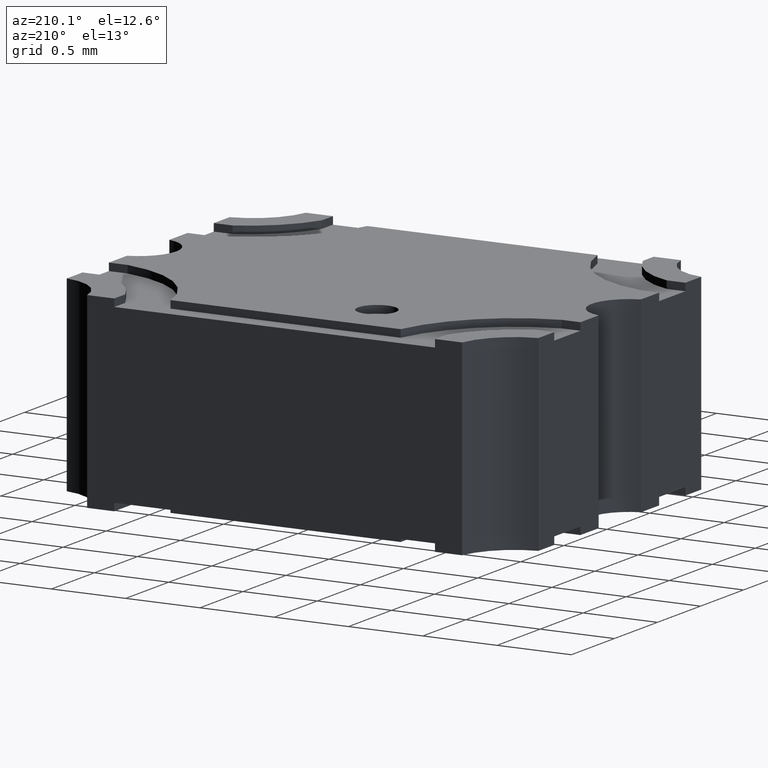
[diagram: clean part render]
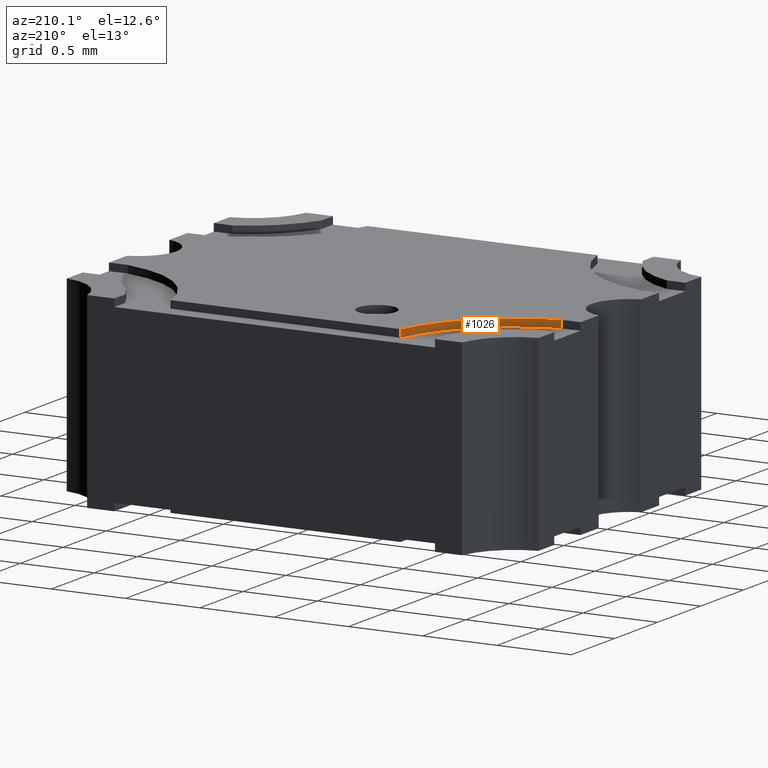
[diagram: same view with one face highlighted and labeled with its STEP entity id]
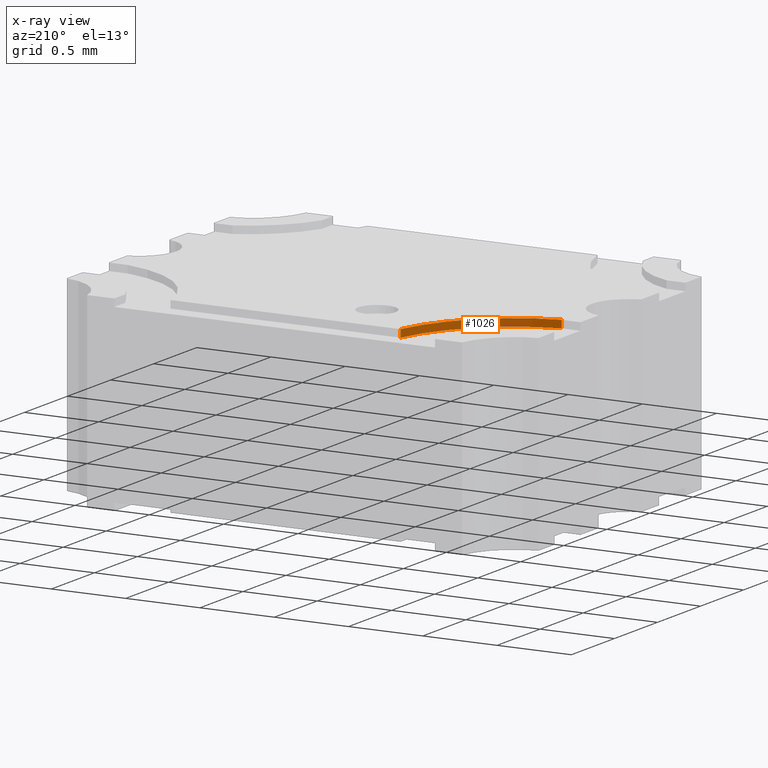
[diagram: x-ray of the same camera — body ghosted, the highlighted face saturated]
A machine part, auxiliary view. The second image highlights one B-rep face of the part: STEP entity #1026.
The next image is the same camera in x-ray: the body ghosted, the highlighted face saturated — about 0% of this face is hidden behind the body in this view.
In plain terms, the highlighted cylindrical surface (partial cylindrical patch) has radius 0.8901 mm, axis along (-0, -0, 1).
Its self-contained STEP definition (entity closure, byte-faithful):
#55 = CARTESIAN_POINT ( 'NONE',  ( -0.03050000001208063097, 0.04499419439808522575, 0.04999999999999999584 ) ) ;
#67 = FACE_OUTER_BOUND ( 'NONE', #318, .T. ) ;
#93 = DIRECTION ( 'NONE',  ( -0.000000000000000000, -0.000000000000000000, 1.000000000000000000 ) ) ;
#106 = AXIS2_PLACEMENT_3D ( 'NONE', #194, #427, #1314 ) ;
#194 = CARTESIAN_POINT ( 'NONE',  ( -0.06477874089993751472, 0.05227293529661255350, 0.04800000000000000100 ) ) ;
#278 = VERTEX_POINT ( 'NONE', #970 ) ;
#287 = DIRECTION ( 'NONE',  ( 1.000000000000000000, 0.000000000000000000, 0.000000000000000000 ) ) ;
#318 = EDGE_LOOP ( 'NONE', ( #1131, #2102, #763, #861 ) ) ;
#427 = DIRECTION ( 'NONE',  ( 0.000000000000000000, 0.000000000000000000, 1.000000000000000000 ) ) ;
#457 = LINE ( 'NONE', #1785, #919 ) ;
#662 = LINE ( 'NONE', #1404, #2130 ) ;
#664 = DIRECTION ( 'NONE',  ( 1.000000000000000000, 0.000000000000000000, 0.000000000000000000 ) ) ;
#708 = VERTEX_POINT ( 'NONE', #1343 ) ;
#759 = CARTESIAN_POINT ( 'NONE',  ( -0.05750000006123703877, 0.01799419439605206075, 0.04999999999999999584 ) ) ;
#763 = ORIENTED_EDGE ( 'NONE', *, *, #1377, .F. ) ;
#861 = ORIENTED_EDGE ( 'NONE', *, *, #1511, .T. ) ;
#898 = VERTEX_POINT ( 'NONE', #55 ) ;
#919 = VECTOR ( 'NONE', #93, 39.37007874015748143 ) ;
#930 = VERTEX_POINT ( 'NONE', #759 ) ;
#970 = CARTESIAN_POINT ( 'NONE',  ( -0.05750000006123703877, 0.01799419439605206075, 0.04800000000000000100 ) ) ;
#1008 = CIRCLE ( 'NONE', #1335, 0.03504300423657659425 ) ;
#1026 = ADVANCED_FACE ( 'NONE', ( #67 ), #1584, .F. ) ;
#1131 = ORIENTED_EDGE ( 'NONE', *, *, #1146, .T. ) ;
#1146 = EDGE_CURVE ( 'NONE', #930, #898, #1008, .T. ) ;
#1222 = CARTESIAN_POINT ( 'NONE',  ( -0.06477874089993751472, 0.05227293529661255350, 0.04999999999999999584 ) ) ;
#1314 = DIRECTION ( 'NONE',  ( 1.000000000000000000, 0.000000000000000000, 0.000000000000000000 ) ) ;
#1335 = AXIS2_PLACEMENT_3D ( 'NONE', #1222, #1978, #287 ) ;
#1343 = CARTESIAN_POINT ( 'NONE',  ( -0.03050000001208063097, 0.04499419439808522575, 0.04800000000000000100 ) ) ;
#1377 = EDGE_CURVE ( 'NONE', #278, #708, #1494, .T. ) ;
#1404 = CARTESIAN_POINT ( 'NONE',  ( -0.05750000006123703877, 0.01799419439605206075, 0.04800000000000000100 ) ) ;
#1494 = CIRCLE ( 'NONE', #106, 0.03504300423657659425 ) ;
#1511 = EDGE_CURVE ( 'NONE', #278, #930, #662, .T. ) ;
#1571 = CARTESIAN_POINT ( 'NONE',  ( -0.06477874089993751472, 0.05227293529661255350, 0.04800000000000000100 ) ) ;
#1584 = CYLINDRICAL_SURFACE ( 'NONE', #2165, 0.03504300423657659425 ) ;
#1592 = EDGE_CURVE ( 'NONE', #708, #898, #457, .T. ) ;
#1785 = CARTESIAN_POINT ( 'NONE',  ( -0.03050000001208063097, 0.04499419439808522575, 0.04800000000000000100 ) ) ;
#1978 = DIRECTION ( 'NONE',  ( 0.000000000000000000, 0.000000000000000000, 1.000000000000000000 ) ) ;
#2102 = ORIENTED_EDGE ( 'NONE', *, *, #1592, .F. ) ;
#2130 = VECTOR ( 'NONE', #2354, 39.37007874015748143 ) ;
#2165 = AXIS2_PLACEMENT_3D ( 'NONE', #1571, #2183, #664 ) ;
#2183 = DIRECTION ( 'NONE',  ( -0.000000000000000000, -0.000000000000000000, 1.000000000000000000 ) ) ;
#2354 = DIRECTION ( 'NONE',  ( -0.000000000000000000, -0.000000000000000000, 1.000000000000000000 ) ) ;